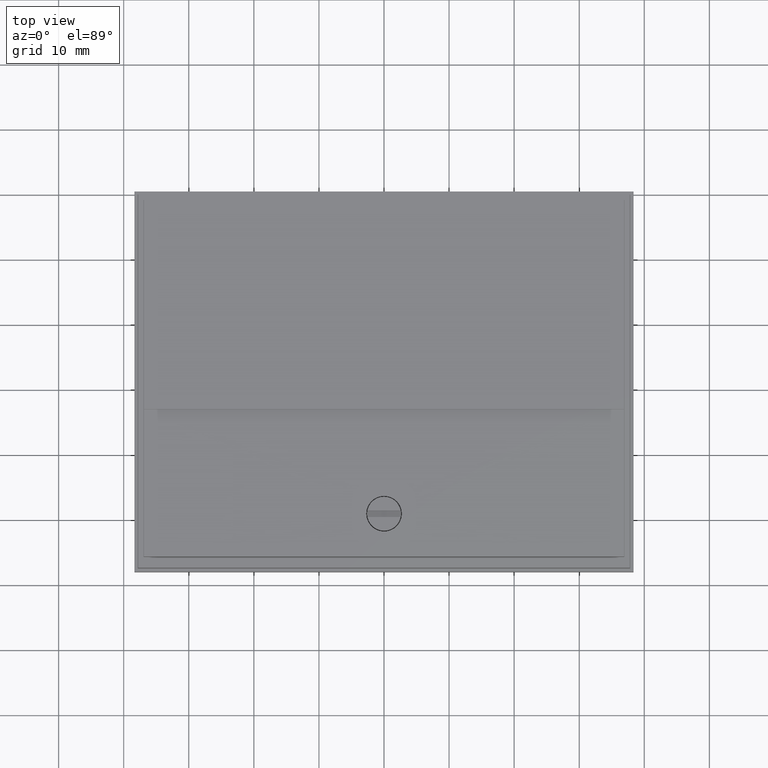
[diagram: clean part render]
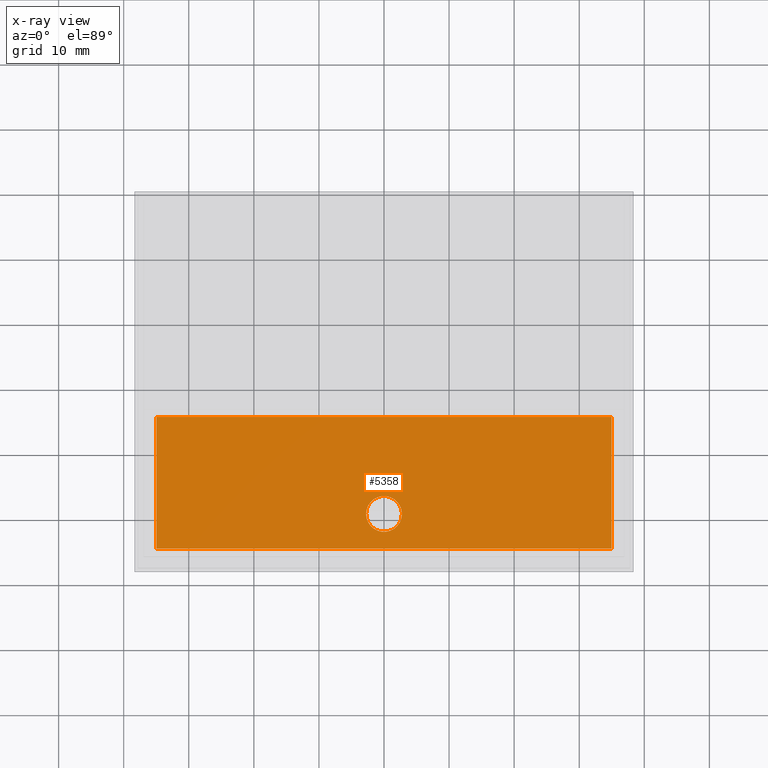
[diagram: x-ray — body ghosted, one internal face saturated and labeled with its STEP entity id]
A machine part, top view, then the same camera in x-ray: the body is ghosted and one INTERNAL B-rep face — a face not visible from any outside direction — is saturated and labeled: STEP entity #5358.
In plain terms, the highlighted planar face has unit normal (0, 0, 1).
Its self-contained STEP definition (entity closure, byte-faithful):
#43 = CIRCLE ( 'NONE', #3345, 0.1082677165354330728 ) ;
#47 = CIRCLE ( 'NONE', #2274, 0.1082677165354330728 ) ;
#255 = CARTESIAN_POINT ( 'NONE',  ( 0.1082677165354331006, 1.498513709338240897E-16, 0.1224409448818897655 ) ) ;
#589 = EDGE_CURVE ( 'NONE', #3395, #2250, #4107, .T. ) ;
#611 = CARTESIAN_POINT ( 'NONE',  ( 1.377952755905512028, 0.8267716535433071723, 0.1224409448818897655 ) ) ;
#936 = DIRECTION ( 'NONE',  ( -1.000000000000000000, 0.000000000000000000, 0.000000000000000000 ) ) ;
#1151 = CARTESIAN_POINT ( 'NONE',  ( 1.376468306248145312, 0.5870982275079879020, 0.1224409448818897239 ) ) ;
#1202 = EDGE_CURVE ( 'NONE', #1453, #3984, #43, .T. ) ;
#1324 = DIRECTION ( 'NONE',  ( -0.000000000000000000, 1.000000000000000000, 0.000000000000000000 ) ) ;
#1378 = CARTESIAN_POINT ( 'NONE',  ( 1.376468306248145756, 0.8267716535433071723, 0.1224409448818897655 ) ) ;
#1452 = PLANE ( 'NONE',  #3869 ) ;
#1453 = VERTEX_POINT ( 'NONE', #2445 ) ;
#1572 = DIRECTION ( 'NONE',  ( 1.000000000000000000, 0.000000000000000000, -0.000000000000000000 ) ) ;
#1684 = EDGE_CURVE ( 'NONE', #3984, #1453, #47, .T. ) ;
#1830 = VECTOR ( 'NONE', #3197, 39.37007874015748143 ) ;
#1842 = DIRECTION ( 'NONE',  ( -0.000000000000000000, -0.000000000000000000, 1.000000000000000000 ) ) ;
#1884 = ORIENTED_EDGE ( 'NONE', *, *, #589, .F. ) ;
#1905 = FACE_OUTER_BOUND ( 'NONE', #5891, .T. ) ;
#2067 = ORIENTED_EDGE ( 'NONE', *, *, #1202, .T. ) ;
#2224 = VERTEX_POINT ( 'NONE', #2934 ) ;
#2250 = VERTEX_POINT ( 'NONE', #1151 ) ;
#2268 = EDGE_CURVE ( 'NONE', #3012, #2224, #5690, .T. ) ;
#2274 = AXIS2_PLACEMENT_3D ( 'NONE', #5990, #1842, #936 ) ;
#2381 = EDGE_CURVE ( 'NONE', #2224, #3395, #2690, .T. ) ;
#2445 = CARTESIAN_POINT ( 'NONE',  ( -0.1082677165354330312, 1.365923996832129884E-16, 0.1224409448818897655 ) ) ;
#2476 = CARTESIAN_POINT ( 'NONE',  ( -1.376468306248145756, 0.8267716535433071723, 0.1224409448818897655 ) ) ;
#2483 = DIRECTION ( 'NONE',  ( 0.000000000000000000, 0.000000000000000000, 1.000000000000000000 ) ) ;
#2567 = DIRECTION ( 'NONE',  ( 0.000000000000000000, -1.000000000000000000, -0.000000000000000000 ) ) ;
#2629 = DIRECTION ( 'NONE',  ( 1.000000000000000000, 0.000000000000000000, -0.000000000000000000 ) ) ;
#2690 = LINE ( 'NONE', #5352, #3743 ) ;
#2768 = VECTOR ( 'NONE', #2567, 39.37007874015748143 ) ;
#2934 = CARTESIAN_POINT ( 'NONE',  ( -1.376468306248145534, -0.2111139755394833284, 0.1224409448818897239 ) ) ;
#3012 = VERTEX_POINT ( 'NONE', #5958 ) ;
#3197 = DIRECTION ( 'NONE',  ( -1.000000000000000000, -0.000000000000000000, 0.000000000000000000 ) ) ;
#3345 = AXIS2_PLACEMENT_3D ( 'NONE', #4731, #5729, #3473 ) ;
#3395 = VERTEX_POINT ( 'NONE', #4621 ) ;
#3473 = DIRECTION ( 'NONE',  ( -1.000000000000000000, 0.000000000000000000, 0.000000000000000000 ) ) ;
#3736 = ORIENTED_EDGE ( 'NONE', *, *, #2381, .F. ) ;
#3739 = VECTOR ( 'NONE', #1324, 39.37007874015748143 ) ;
#3743 = VECTOR ( 'NONE', #2629, 39.37007874015748143 ) ;
#3763 = FACE_BOUND ( 'NONE', #4456, .T. ) ;
#3869 = AXIS2_PLACEMENT_3D ( 'NONE', #611, #2483, #1572 ) ;
#3984 = VERTEX_POINT ( 'NONE', #255 ) ;
#4060 = ORIENTED_EDGE ( 'NONE', *, *, #2268, .F. ) ;
#4107 = LINE ( 'NONE', #1378, #3739 ) ;
#4456 = EDGE_LOOP ( 'NONE', ( #2067, #5514 ) ) ;
#4621 = CARTESIAN_POINT ( 'NONE',  ( 1.376468306248145756, -0.2111139755394833284, 0.1224409448818897239 ) ) ;
#4731 = CARTESIAN_POINT ( 'NONE',  ( 3.414809992080331488E-17, 1.365923996832129884E-16, 0.1224409448818897655 ) ) ;
#5233 = EDGE_CURVE ( 'NONE', #2250, #3012, #5912, .T. ) ;
#5352 = CARTESIAN_POINT ( 'NONE',  ( 1.377952755905512028, -0.2111139755394834394, 0.1224409448818897655 ) ) ;
#5358 = ADVANCED_FACE ( 'NONE', ( #1905, #3763 ), #1452, .F. ) ;
#5510 = CARTESIAN_POINT ( 'NONE',  ( 1.377952755905512028, 0.5870982275079882351, 0.1224409448818897655 ) ) ;
#5514 = ORIENTED_EDGE ( 'NONE', *, *, #1684, .T. ) ;
#5607 = ORIENTED_EDGE ( 'NONE', *, *, #5233, .F. ) ;
#5690 = LINE ( 'NONE', #2476, #2768 ) ;
#5729 = DIRECTION ( 'NONE',  ( -0.000000000000000000, -0.000000000000000000, 1.000000000000000000 ) ) ;
#5891 = EDGE_LOOP ( 'NONE', ( #5607, #1884, #3736, #4060 ) ) ;
#5912 = LINE ( 'NONE', #5510, #1830 ) ;
#5958 = CARTESIAN_POINT ( 'NONE',  ( -1.376468306248145534, 0.5870982275079876800, 0.1224409448818897239 ) ) ;
#5990 = CARTESIAN_POINT ( 'NONE',  ( 3.414809992080331488E-17, 1.365923996832129884E-16, 0.1224409448818897655 ) ) ;